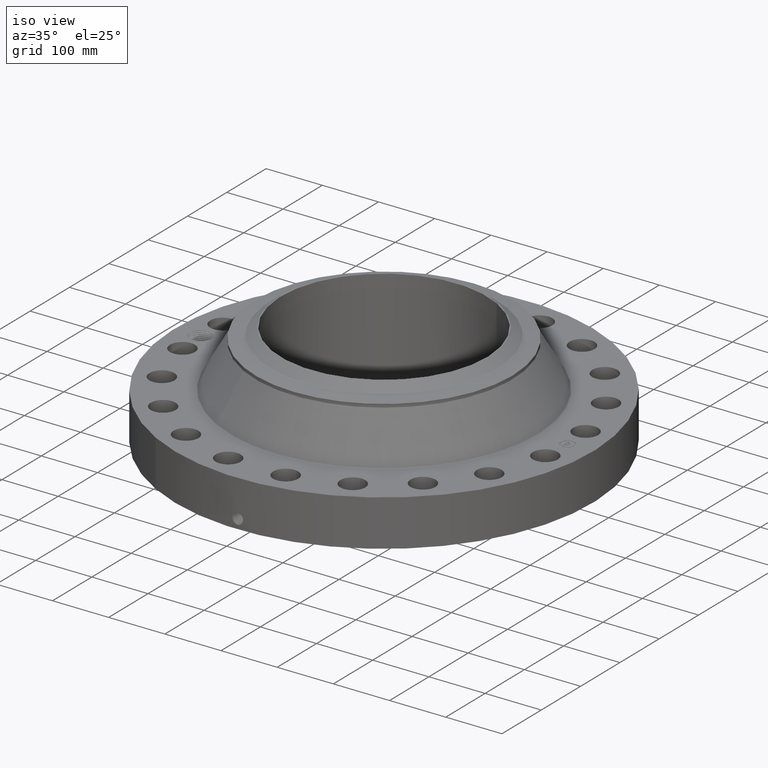
[diagram: clean part render]
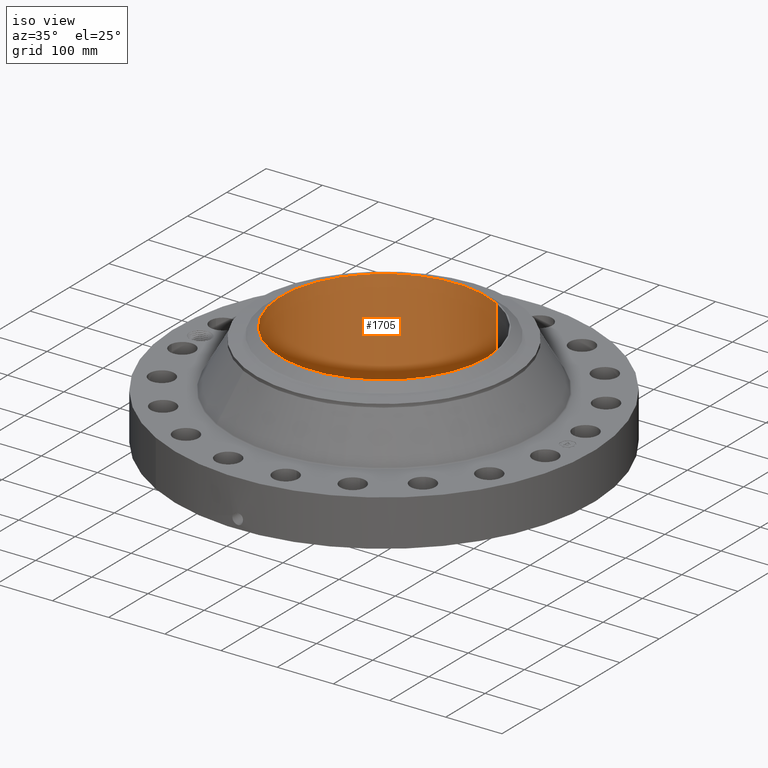
[diagram: same view with one face highlighted and labeled with its STEP entity id]
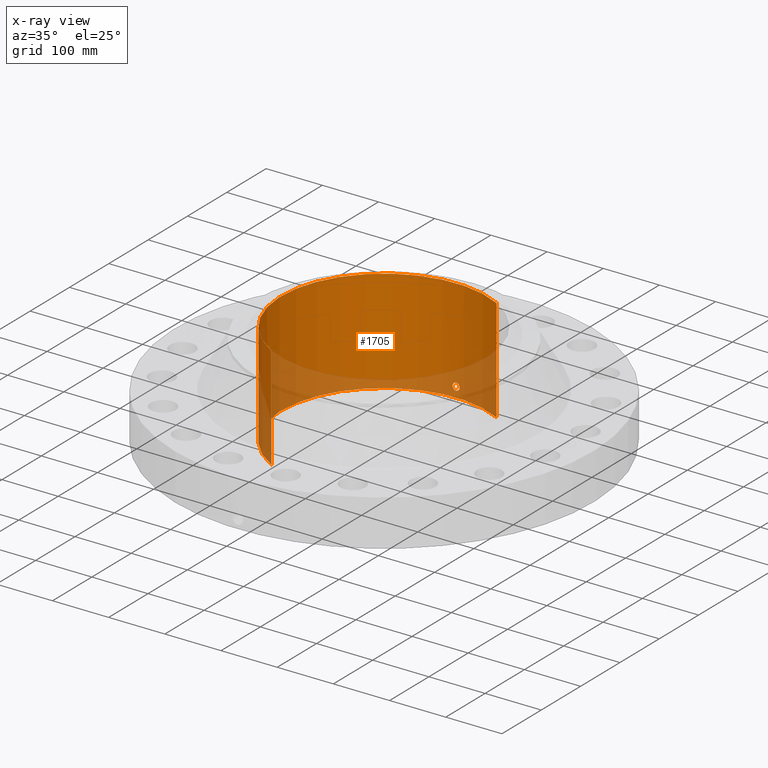
[diagram: x-ray of the same camera — body ghosted, the highlighted face saturated]
A machine part, iso view. The second image highlights one B-rep face of the part: STEP entity #1705.
The next image is the same camera in x-ray: the body ghosted, the highlighted face saturated — about 23% of this face is hidden behind the body in this view.
In plain terms, the highlighted cylindrical surface (partial cylindrical patch) has radius 183.363 mm, axis along (0, 0, -1).
Its self-contained STEP definition (entity closure, byte-faithful):
#263=AXIS2_PLACEMENT_3D('Circle Axis2P3D',#261,#262,$) ;
#1582=AXIS2_PLACEMENT_3D('Cylinder Axis2P3D',#1579,#1580,#1581) ;
#1654=AXIS2_PLACEMENT_3D('Circle Axis2P3D',#1652,#1653,$) ;
#256=CARTESIAN_POINT('Vertex',(3.4609729632,6.33526851431,0.250000000001)) ;
#258=CARTESIAN_POINT('Vertex',(-3.4609729632,-6.33526851431,0.250000000001)) ;
#261=CARTESIAN_POINT('Axis2P3D Location',(0.,0.,0.250000000001)) ;
#1579=CARTESIAN_POINT('Axis2P3D Location',(0.,0.,3.87500000002)) ;
#1588=CARTESIAN_POINT('Vertex',(3.4609729632,6.33526851431,7.50000000003)) ;
#1590=CARTESIAN_POINT('Vertex',(-3.4609729632,-6.33526851431,7.50000000003)) ;
#1593=CARTESIAN_POINT('Line Origine',(3.4609729632,6.33526851431,3.87500000002)) ;
#1598=CARTESIAN_POINT('Line Origine',(-3.4609729632,-6.33526851431,3.87500000002)) ;
#1652=CARTESIAN_POINT('Axis2P3D Location',(0.,0.,7.50000000003)) ;
#1664=CARTESIAN_POINT('Control Point',(0.219395640473,7.21566535763,1.05985638466)) ;
#1665=CARTESIAN_POINT('Control Point',(0.19444347723,7.21642403969,1.1055310131)) ;
#1666=CARTESIAN_POINT('Control Point',(0.157607221219,7.21743610595,1.14470903728)) ;
#1667=CARTESIAN_POINT('Control Point',(0.111113039978,7.21842029589,1.17324097983)) ;
#1668=CARTESIAN_POINT('Control Point',(0.0336798237571,7.2192033861,1.19588164334)) ;
#1669=CARTESIAN_POINT('Control Point',(-0.0446639367745,7.21893285786,1.18805735062)) ;
#1670=CARTESIAN_POINT('Control Point',(-0.0702916783686,7.21872283908,1.18204601083)) ;
#1671=CARTESIAN_POINT('Control Point',(-0.143945309812,7.2177946796,1.15421856408)) ;
#1672=CARTESIAN_POINT('Control Point',(-0.203231231594,7.21627949124,1.09951220782)) ;
#1673=CARTESIAN_POINT('Control Point',(-0.232199349658,7.2152854808,1.0532789985)) ;
#1674=CARTESIAN_POINT('Control Point',(-0.255838754623,7.21446805381,0.97512994009)) ;
#1675=CARTESIAN_POINT('Control Point',(-0.248285892278,7.2147290081,0.895759511269)) ;
#1676=CARTESIAN_POINT('Control Point',(-0.242052041755,7.21494752736,0.869192037214)) ;
#1677=CARTESIAN_POINT('Control Point',(-0.23231738769,7.21527246594,0.843796714975)) ;
#1678=CARTESIAN_POINT('Control Point',(-0.219395640473,7.21566535763,0.820143615352)) ;
#1679=CARTESIAN_POINT('Vertex',(0.219395640473,7.21566535763,1.05985638466)) ;
#1681=CARTESIAN_POINT('Vertex',(-0.219395640473,7.21566535763,0.820143615352)) ;
#1685=CARTESIAN_POINT('Control Point',(-0.219395640473,7.21566535763,0.820143615352)) ;
#1686=CARTESIAN_POINT('Control Point',(-0.194443477239,7.21642403969,0.774468986922)) ;
#1687=CARTESIAN_POINT('Control Point',(-0.157607221245,7.21743610595,0.735290962759)) ;
#1688=CARTESIAN_POINT('Control Point',(-0.111113039944,7.21842029589,0.706759020166)) ;
#1689=CARTESIAN_POINT('Control Point',(-0.0336798237394,7.2192033861,0.684118356672)) ;
#1690=CARTESIAN_POINT('Control Point',(0.0446639367759,7.21893285786,0.691942649392)) ;
#1691=CARTESIAN_POINT('Control Point',(0.0702916783616,7.21872283908,0.697953989171)) ;
#1692=CARTESIAN_POINT('Control Point',(0.143945309825,7.2177946796,0.725781435932)) ;
#1693=CARTESIAN_POINT('Control Point',(0.203231231621,7.21627949124,0.78048779221)) ;
#1694=CARTESIAN_POINT('Control Point',(0.232199349645,7.21528548081,0.826721001465)) ;
#1695=CARTESIAN_POINT('Control Point',(0.255838754642,7.21446805381,0.904870059955)) ;
#1696=CARTESIAN_POINT('Control Point',(0.248285892267,7.2147290081,0.984240488859)) ;
#1697=CARTESIAN_POINT('Control Point',(0.2420520418,7.21494752736,1.01080796268)) ;
#1698=CARTESIAN_POINT('Control Point',(0.232317387719,7.21527246594,1.03620328498)) ;
#1699=CARTESIAN_POINT('Control Point',(0.219395640473,7.21566535763,1.05985638466)) ;
#262=DIRECTION('Axis2P3D Direction',(0.,0.,-0.0393700787402)) ;
#1580=DIRECTION('Axis2P3D Direction',(0.,0.,-0.0393700787402)) ;
#1581=DIRECTION('Axis2P3D XDirection',(-0.0188750212049,-0.0345504945626,0.)) ;
#1594=DIRECTION('Vector Direction',(0.,0.,-0.0393700787402)) ;
#1599=DIRECTION('Vector Direction',(0.,0.,-0.0393700787402)) ;
#1653=DIRECTION('Axis2P3D Direction',(0.,0.,-0.0393700787402)) ;
#1595=VECTOR('Line Direction',#1594,0.0393700787402) ;
#1600=VECTOR('Line Direction',#1599,0.0393700787402) ;
#1658=ORIENTED_EDGE('',*,*,#1656,.F.) ;
#1659=ORIENTED_EDGE('',*,*,#1602,.T.) ;
#1660=ORIENTED_EDGE('',*,*,#265,.T.) ;
#1661=ORIENTED_EDGE('',*,*,#1597,.F.) ;
#1702=ORIENTED_EDGE('',*,*,#1683,.F.) ;
#1703=ORIENTED_EDGE('',*,*,#1700,.F.) ;
#1704=FACE_BOUND('',#1701,.T.) ;
#1705=ADVANCED_FACE('PartBody',(#1662,#1704),#1583,.F.) ;
#1663=B_SPLINE_CURVE_WITH_KNOTS('',5,(#1664,#1665,#1666,#1667,#1668,#1669,#1670,#1671,#1672,#1673,#1674,#1675,#1676,#1677,#1678),.UNSPECIFIED.,.F.,.U.,(6,3,3,3,6),(0.,9.34871444323,14.0226848513,23.372709077,28.2140418167),.UNSPECIFIED.) ;
#1684=B_SPLINE_CURVE_WITH_KNOTS('',5,(#1685,#1686,#1687,#1688,#1689,#1690,#1691,#1692,#1693,#1694,#1695,#1696,#1697,#1698,#1699),.UNSPECIFIED.,.F.,.U.,(6,3,3,3,6),(0.,9.34871443988,14.0226848483,23.3727090774,28.2140418281),.UNSPECIFIED.) ;
#264=CIRCLE('generated circle',#263,7.21900000003) ;
#1655=CIRCLE('generated circle',#1654,7.21900000003) ;
#1583=CYLINDRICAL_SURFACE('generated cylinder',#1582,7.21900000003) ;
#265=EDGE_CURVE('',#259,#257,#264,.T.) ;
#1597=EDGE_CURVE('',#1589,#257,#1596,.T.) ;
#1602=EDGE_CURVE('',#1591,#259,#1601,.T.) ;
#1656=EDGE_CURVE('',#1591,#1589,#1655,.T.) ;
#1683=EDGE_CURVE('',#1680,#1682,#1663,.T.) ;
#1700=EDGE_CURVE('',#1682,#1680,#1684,.T.) ;
#1657=EDGE_LOOP('',(#1658,#1659,#1660,#1661)) ;
#1701=EDGE_LOOP('',(#1702,#1703)) ;
#1662=FACE_OUTER_BOUND('',#1657,.T.) ;
#1596=LINE('Line',#1593,#1595) ;
#1601=LINE('Line',#1598,#1600) ;
#257=VERTEX_POINT('',#256) ;
#259=VERTEX_POINT('',#258) ;
#1589=VERTEX_POINT('',#1588) ;
#1591=VERTEX_POINT('',#1590) ;
#1680=VERTEX_POINT('',#1679) ;
#1682=VERTEX_POINT('',#1681) ;